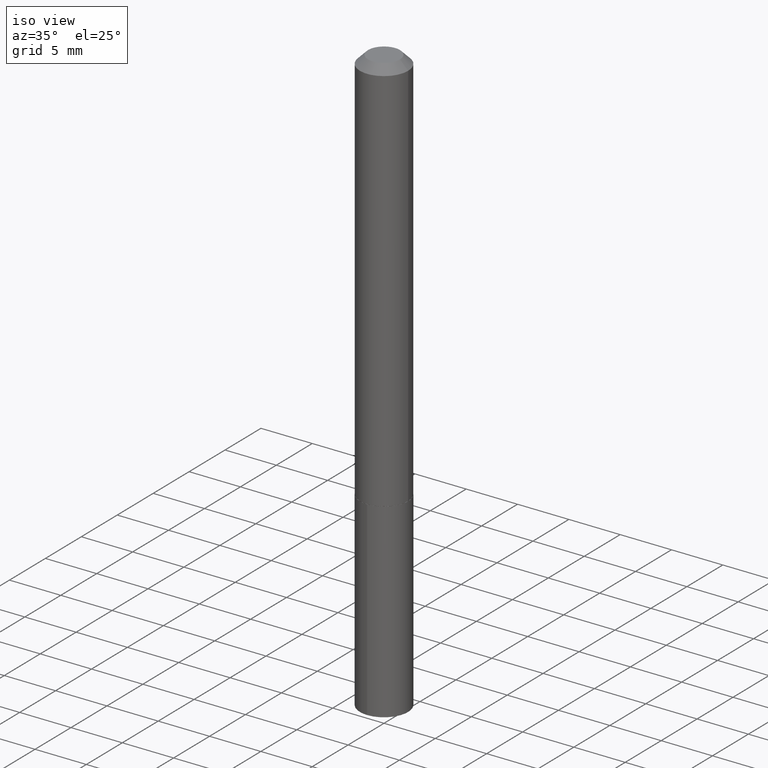
[diagram: clean part render]
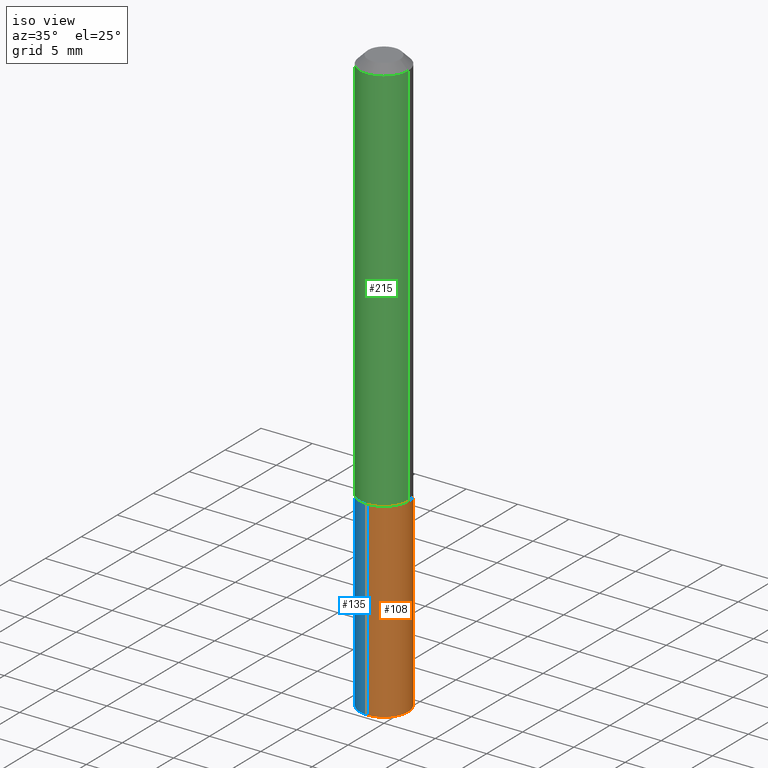
[diagram: same view with three faces highlighted in distinct colors, each labeled with its STEP entity id]
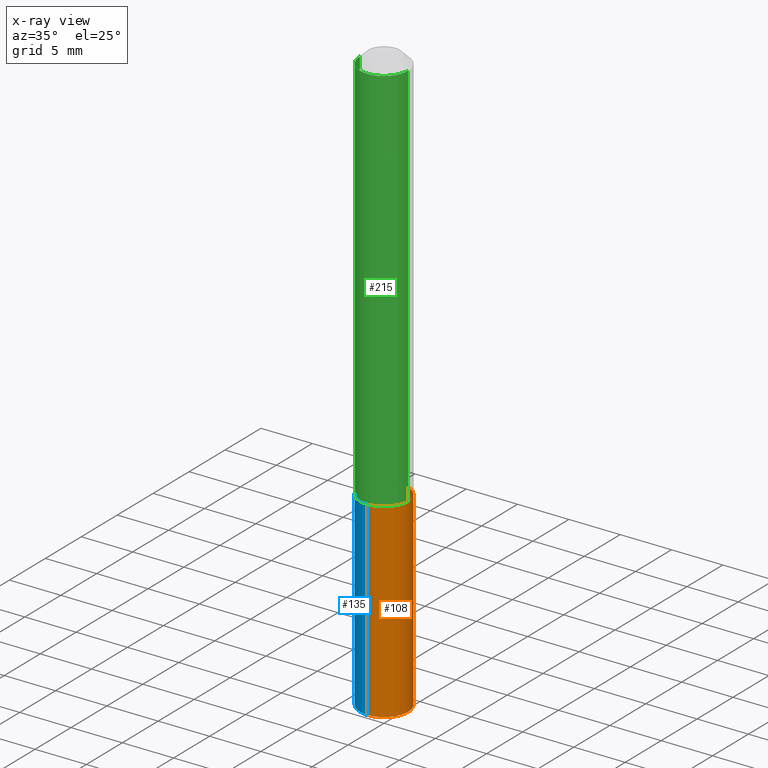
[diagram: x-ray of the same camera — body ghosted, the three highlighted faces saturated]
A machine part, iso view with three faces highlighted in distinct colors.
The next image is the same camera in x-ray (body ghosted, the three faces saturated) — at least one of them is partly hidden behind the body in this view.
Their STEP definitions:

[orange] entity #108 — the highlighted cylindrical surface (edge-blend (fillet) strip) has radius 2.3495 mm, axis along (-0, 0, 1).
#10 = VERTEX_POINT ( 'NONE', #234 ) ;
#11 = ORIENTED_EDGE ( 'NONE', *, *, #294, .T. ) ;
#13 = AXIS2_PLACEMENT_3D ( 'NONE', #300, #295, #240 ) ;
#35 = ORIENTED_EDGE ( 'NONE', *, *, #179, .T. ) ;
#73 = FACE_OUTER_BOUND ( 'NONE', #372, .T. ) ;
#74 = DIRECTION ( 'NONE',  ( -6.982962677686265922E-15, -1.000000000000000000, 2.953349182339743999E-15 ) ) ;
#83 = DIRECTION ( 'NONE',  ( -6.982962677686265922E-15, -1.000000000000000000, 2.953349182339743999E-15 ) ) ;
#102 = DIRECTION ( 'NONE',  ( -2.445421299187039407E-29, 3.491549371568351150E-15, 1.000000000000000000 ) ) ;
#108 = ADVANCED_FACE ( 'NONE', ( #73 ), #377, .T. ) ;
#114 = CARTESIAN_POINT ( 'NONE',  ( -6.459240476859423182E-16, -0.09250000000000532796, -1.523599999999999843 ) ) ;
#116 = CIRCLE ( 'NONE', #13, 0.09249999999999999889 ) ;
#142 = DIRECTION ( 'NONE',  ( -2.445421299187039407E-29, 3.491549371568351150E-15, 1.000000000000000000 ) ) ;
#178 = VERTEX_POINT ( 'NONE', #289 ) ;
#179 = EDGE_CURVE ( 'NONE', #375, #178, #356, .T. ) ;
#189 = ORIENTED_EDGE ( 'NONE', *, *, #227, .F. ) ;
#195 = ORIENTED_EDGE ( 'NONE', *, *, #326, .F. ) ;
#207 = CARTESIAN_POINT ( 'NONE',  ( -6.459240476859423182E-16, -0.09250000000000532796, -1.523599999999999843 ) ) ;
#214 = VECTOR ( 'NONE', #102, 39.37007874015748143 ) ;
#227 = EDGE_CURVE ( 'NONE', #303, #178, #378, .T. ) ;
#234 = CARTESIAN_POINT ( 'NONE',  ( -6.459240476859242730E-16, -0.09250000000000783984, -2.254334862028694708 ) ) ;
#240 = DIRECTION ( 'NONE',  ( -6.982962677686265922E-15, -1.000000000000000000, 2.953349182339743999E-15 ) ) ;
#242 = LINE ( 'NONE', #207, #306 ) ;
#250 = CARTESIAN_POINT ( 'NONE',  ( 6.572520305781474899E-16, 0.09249999999999210243, -2.254334862028695152 ) ) ;
#261 = CARTESIAN_POINT ( 'NONE',  ( 3.725916273103674139E-29, -5.319620967861417089E-15, -1.523600000000000065 ) ) ;
#289 = CARTESIAN_POINT ( 'NONE',  ( 6.572520305781478843E-16, 0.09249999999999469757, -1.523600000000000287 ) ) ;
#294 = EDGE_CURVE ( 'NONE', #10, #375, #116, .T. ) ;
#295 = DIRECTION ( 'NONE',  ( -2.445421299187039407E-29, 3.491549371568351150E-15, 1.000000000000000000 ) ) ;
#300 = CARTESIAN_POINT ( 'NONE',  ( 5.512870868767147067E-29, -7.871017816160790927E-15, -2.254334862028694708 ) ) ;
#303 = VERTEX_POINT ( 'NONE', #114 ) ;
#306 = VECTOR ( 'NONE', #142, 39.37007874015748143 ) ;
#313 = AXIS2_PLACEMENT_3D ( 'NONE', #360, #390, #83 ) ;
#326 = EDGE_CURVE ( 'NONE', #10, #303, #242, .T. ) ;
#356 = LINE ( 'NONE', #379, #214 ) ;
#360 = CARTESIAN_POINT ( 'NONE',  ( 3.725916273103674139E-29, -5.319620967861417089E-15, -1.523600000000000065 ) ) ;
#372 = EDGE_LOOP ( 'NONE', ( #11, #35, #189, #195 ) ) ;
#375 = VERTEX_POINT ( 'NONE', #250 ) ;
#377 = CYLINDRICAL_SURFACE ( 'NONE', #389, 0.09249999999999999889 ) ;
#378 = CIRCLE ( 'NONE', #313, 0.09249999999999999889 ) ;
#379 = CARTESIAN_POINT ( 'NONE',  ( 6.572520305781298391E-16, 0.09249999999999466982, -1.523600000000000287 ) ) ;
#380 = DIRECTION ( 'NONE',  ( -2.445421299187039407E-29, 3.491549371568351150E-15, 1.000000000000000000 ) ) ;
#389 = AXIS2_PLACEMENT_3D ( 'NONE', #261, #380, #74 ) ;
#390 = DIRECTION ( 'NONE',  ( -2.445421299187039407E-29, 3.491549371568351150E-15, 1.000000000000000000 ) ) ;

[blue] entity #135 — the highlighted cylindrical surface (edge-blend (fillet) strip) has radius 2.3495 mm, axis along (-0, 0, 1).
#10 = VERTEX_POINT ( 'NONE', #234 ) ;
#18 = DIRECTION ( 'NONE',  ( -6.982962677686265922E-15, -1.000000000000000000, 2.953349182339743999E-15 ) ) ;
#23 = CARTESIAN_POINT ( 'NONE',  ( 3.725916273103674139E-29, -5.319620967861417089E-15, -1.523600000000000065 ) ) ;
#42 = CIRCLE ( 'NONE', #267, 0.09249999999999999889 ) ;
#44 = ORIENTED_EDGE ( 'NONE', *, *, #196, .T. ) ;
#50 = DIRECTION ( 'NONE',  ( -2.445421299187039407E-29, 3.491549371568351150E-15, 1.000000000000000000 ) ) ;
#87 = EDGE_CURVE ( 'NONE', #178, #303, #220, .T. ) ;
#102 = DIRECTION ( 'NONE',  ( -2.445421299187039407E-29, 3.491549371568351150E-15, 1.000000000000000000 ) ) ;
#103 = CYLINDRICAL_SURFACE ( 'NONE', #365, 0.09249999999999999889 ) ;
#114 = CARTESIAN_POINT ( 'NONE',  ( -6.459240476859423182E-16, -0.09250000000000532796, -1.523599999999999843 ) ) ;
#133 = DIRECTION ( 'NONE',  ( -6.982962677686265922E-15, -1.000000000000000000, 2.953349182339743999E-15 ) ) ;
#135 = ADVANCED_FACE ( 'NONE', ( #157 ), #103, .T. ) ;
#142 = DIRECTION ( 'NONE',  ( -2.445421299187039407E-29, 3.491549371568351150E-15, 1.000000000000000000 ) ) ;
#148 = ORIENTED_EDGE ( 'NONE', *, *, #179, .F. ) ;
#157 = FACE_OUTER_BOUND ( 'NONE', #338, .T. ) ;
#161 = DIRECTION ( 'NONE',  ( -2.445421299187039407E-29, 3.491549371568351150E-15, 1.000000000000000000 ) ) ;
#168 = ORIENTED_EDGE ( 'NONE', *, *, #87, .F. ) ;
#178 = VERTEX_POINT ( 'NONE', #289 ) ;
#179 = EDGE_CURVE ( 'NONE', #375, #178, #356, .T. ) ;
#183 = ORIENTED_EDGE ( 'NONE', *, *, #326, .T. ) ;
#196 = EDGE_CURVE ( 'NONE', #375, #10, #42, .T. ) ;
#197 = DIRECTION ( 'NONE',  ( -6.982962677686265922E-15, -1.000000000000000000, 2.953349182339743999E-15 ) ) ;
#199 = DIRECTION ( 'NONE',  ( -2.445421299187039407E-29, 3.491549371568351150E-15, 1.000000000000000000 ) ) ;
#207 = CARTESIAN_POINT ( 'NONE',  ( -6.459240476859423182E-16, -0.09250000000000532796, -1.523599999999999843 ) ) ;
#214 = VECTOR ( 'NONE', #102, 39.37007874015748143 ) ;
#220 = CIRCLE ( 'NONE', #347, 0.09249999999999999889 ) ;
#234 = CARTESIAN_POINT ( 'NONE',  ( -6.459240476859242730E-16, -0.09250000000000783984, -2.254334862028694708 ) ) ;
#242 = LINE ( 'NONE', #207, #306 ) ;
#250 = CARTESIAN_POINT ( 'NONE',  ( 6.572520305781474899E-16, 0.09249999999999210243, -2.254334862028695152 ) ) ;
#267 = AXIS2_PLACEMENT_3D ( 'NONE', #354, #50, #133 ) ;
#285 = CARTESIAN_POINT ( 'NONE',  ( 3.725916273103674139E-29, -5.319620967861417089E-15, -1.523600000000000065 ) ) ;
#289 = CARTESIAN_POINT ( 'NONE',  ( 6.572520305781478843E-16, 0.09249999999999469757, -1.523600000000000287 ) ) ;
#303 = VERTEX_POINT ( 'NONE', #114 ) ;
#306 = VECTOR ( 'NONE', #142, 39.37007874015748143 ) ;
#326 = EDGE_CURVE ( 'NONE', #10, #303, #242, .T. ) ;
#338 = EDGE_LOOP ( 'NONE', ( #148, #44, #183, #168 ) ) ;
#347 = AXIS2_PLACEMENT_3D ( 'NONE', #23, #161, #197 ) ;
#354 = CARTESIAN_POINT ( 'NONE',  ( 5.512870868767147067E-29, -7.871017816160790927E-15, -2.254334862028694708 ) ) ;
#356 = LINE ( 'NONE', #379, #214 ) ;
#365 = AXIS2_PLACEMENT_3D ( 'NONE', #285, #199, #18 ) ;
#375 = VERTEX_POINT ( 'NONE', #250 ) ;
#379 = CARTESIAN_POINT ( 'NONE',  ( 6.572520305781298391E-16, 0.09249999999999466982, -1.523600000000000287 ) ) ;

[green] entity #215 — the highlighted cylindrical surface (edge-blend (fillet) strip) has radius 2.3495 mm, axis along (-0, 0, 1).
#3 = FACE_OUTER_BOUND ( 'NONE', #69, .T. ) ;
#6 = CIRCLE ( 'NONE', #129, 0.09249999999999999889 ) ;
#24 = LINE ( 'NONE', #51, #115 ) ;
#33 = DIRECTION ( 'NONE',  ( -2.445468806185136877E-29, 3.491481338843145188E-15, 1.000000000000000000 ) ) ;
#38 = CARTESIAN_POINT ( 'NONE',  ( -0.09250000000000008216, 6.572520305780932557E-16, -4.550014958485792374E-30 ) ) ;
#51 = CARTESIAN_POINT ( 'NONE',  ( 0.09250000000000008216, -6.459240476859802821E-16, 4.510463517611244952E-30 ) ) ;
#54 = CARTESIAN_POINT ( 'NONE',  ( 0.09250000000000017930, -5.963799274877977150E-15, -1.523100000000000120 ) ) ;
#56 = CARTESIAN_POINT ( 'NONE',  ( 7.642090019328602662E-31, -1.091087918388490267E-16, -0.03125000000000020817 ) ) ;
#59 = CARTESIAN_POINT ( 'NONE',  ( 0.000000000000000000, 0.000000000000000000, 0.000000000000000000 ) ) ;
#68 = EDGE_CURVE ( 'NONE', #276, #373, #24, .T. ) ;
#69 = EDGE_LOOP ( 'NONE', ( #225, #222, #308, #123 ) ) ;
#84 = VECTOR ( 'NONE', #33, 39.37007874015748143 ) ;
#89 = AXIS2_PLACEMENT_3D ( 'NONE', #59, #331, #209 ) ;
#90 = DIRECTION ( 'NONE',  ( 1.000000000000000000, -6.982962677686266711E-15, 0.000000000000000000 ) ) ;
#107 = EDGE_CURVE ( 'NONE', #271, #276, #299, .T. ) ;
#115 = VECTOR ( 'NONE', #327, 39.37007874015748143 ) ;
#123 = ORIENTED_EDGE ( 'NONE', *, *, #252, .F. ) ;
#129 = AXIS2_PLACEMENT_3D ( 'NONE', #56, #298, #90 ) ;
#145 = AXIS2_PLACEMENT_3D ( 'NONE', #286, #384, #165 ) ;
#165 = DIRECTION ( 'NONE',  ( 1.000000000000000000, -6.982962677686272233E-15, 0.000000000000000000 ) ) ;
#205 = CARTESIAN_POINT ( 'NONE',  ( -0.09250000000000017930, -4.660623196613901936E-15, -1.523100000000000120 ) ) ;
#209 = DIRECTION ( 'NONE',  ( 1.000000000000000000, -6.982962677686267499E-15, 4.876176775795936353E-29 ) ) ;
#215 = ADVANCED_FACE ( 'NONE', ( #3 ), #297, .T. ) ;
#219 = VERTEX_POINT ( 'NONE', #268 ) ;
#222 = ORIENTED_EDGE ( 'NONE', *, *, #107, .T. ) ;
#225 = ORIENTED_EDGE ( 'NONE', *, *, #339, .F. ) ;
#252 = EDGE_CURVE ( 'NONE', #219, #373, #6, .T. ) ;
#268 = CARTESIAN_POINT ( 'NONE',  ( -0.09249999999999999889, -2.056239978937328693E-15, -0.03125000000000020817 ) ) ;
#269 = LINE ( 'NONE', #38, #84 ) ;
#270 = CARTESIAN_POINT ( 'NONE',  ( 0.09249999999999999889, -7.550328395248287911E-16, -0.03125000000000020817 ) ) ;
#271 = VERTEX_POINT ( 'NONE', #205 ) ;
#276 = VERTEX_POINT ( 'NONE', #54 ) ;
#286 = CARTESIAN_POINT ( 'NONE',  ( 3.724693538700582458E-29, -5.317875227191995586E-15, -1.523100000000000120 ) ) ;
#297 = CYLINDRICAL_SURFACE ( 'NONE', #89, 0.09250000000000008216 ) ;
#298 = DIRECTION ( 'NONE',  ( -2.445468806185136597E-29, 3.491481338843145583E-15, 1.000000000000000000 ) ) ;
#299 = CIRCLE ( 'NONE', #145, 0.09250000000000017930 ) ;
#308 = ORIENTED_EDGE ( 'NONE', *, *, #68, .T. ) ;
#327 = DIRECTION ( 'NONE',  ( -2.445468806185136877E-29, 3.491481338843145188E-15, 1.000000000000000000 ) ) ;
#331 = DIRECTION ( 'NONE',  ( -2.445468806185136597E-29, 3.491481338843145583E-15, 1.000000000000000000 ) ) ;
#339 = EDGE_CURVE ( 'NONE', #271, #219, #269, .T. ) ;
#373 = VERTEX_POINT ( 'NONE', #270 ) ;
#384 = DIRECTION ( 'NONE',  ( -2.445468806185136597E-29, 3.491481338843145583E-15, 1.000000000000000000 ) ) ;